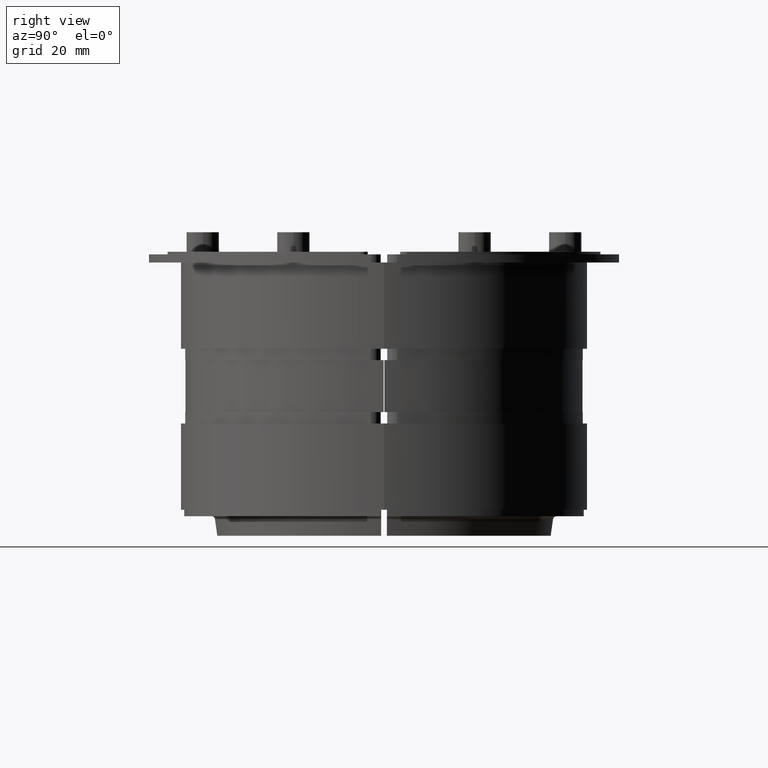
[diagram: clean part render]
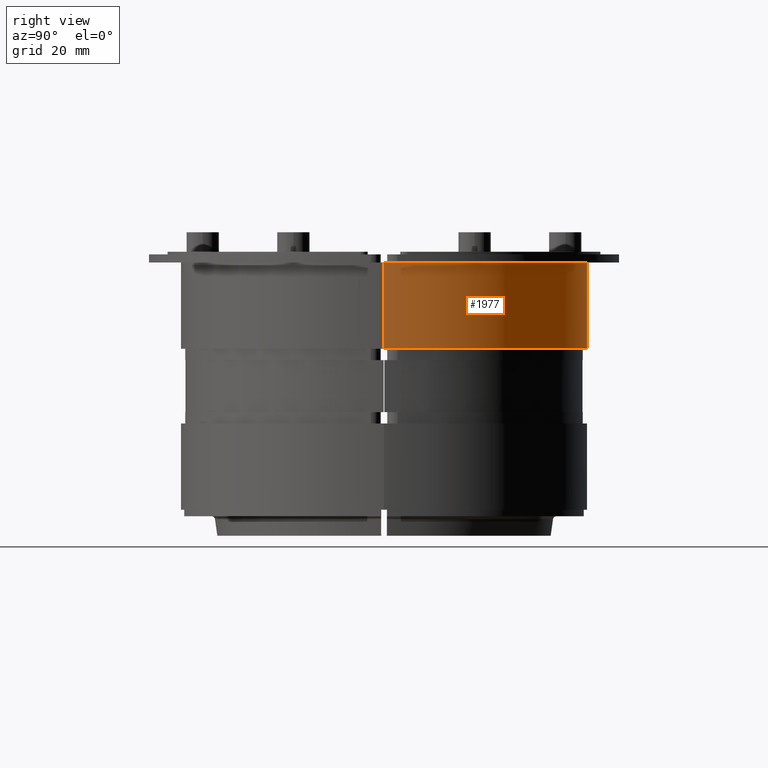
[diagram: same view with one face highlighted and labeled with its STEP entity id]
A machine part, right view. The second image highlights one B-rep face of the part: STEP entity #1977.
In plain terms, the highlighted cylindrical surface (partial cylindrical patch) has radius 62.4 mm, axis along (0, 0, 1).
Its self-contained STEP definition (entity closure, byte-faithful):
#1919=CARTESIAN_POINT('',(-48.401428644322380,-25.449999999999989,11.500000000000000));
#1920=VERTEX_POINT('',#1919);
#1927=CARTESIAN_POINT('',(-48.401428644322380,-25.449999999999989,-15.0));
#1928=VERTEX_POINT('',#1927);
#1929=CARTESIAN_POINT('',(-48.401428644322380,-25.449999999999989,-15.0));
#1930=DIRECTION('',(0.0,0.0,1.0));
#1931=VECTOR('',#1930,26.500000000000000);
#1932=LINE('',#1929,#1931);
#1933=EDGE_CURVE('',#1928,#1920,#1932,.T.);
#1945=CARTESIAN_POINT('',(13.998571355677655,-25.449999999999960,-15.0));
#1946=DIRECTION('',(0.0,0.0,1.0));
#1947=DIRECTION('',(1.0,0.0,0.0));
#1948=AXIS2_PLACEMENT_3D('',#1945,#1946,#1947);
#1949=CYLINDRICAL_SURFACE('',#1948,62.399999999999999);
#1950=CARTESIAN_POINT('',(76.398571355677632,-25.449999999999989,11.500000000000000));
#1951=VERTEX_POINT('',#1950);
#1952=CARTESIAN_POINT('',(13.998571355677655,-25.449999999999960,11.500000000000000));
#1953=DIRECTION('',(0.0,0.0,-1.0));
#1954=DIRECTION('',(1.0,0.0,0.0));
#1955=AXIS2_PLACEMENT_3D('',#1952,#1953,#1954);
#1956=CIRCLE('',#1955,62.399999999999999);
#1957=EDGE_CURVE('',#1920,#1951,#1956,.T.);
#1958=ORIENTED_EDGE('',*,*,#1957,.T.);
#1959=CARTESIAN_POINT('',(76.398571355677632,-25.449999999999989,-15.0));
#1960=VERTEX_POINT('',#1959);
#1961=CARTESIAN_POINT('',(76.398571355677632,-25.449999999999989,-15.0));
#1962=DIRECTION('',(0.0,0.0,1.0));
#1963=VECTOR('',#1962,26.500000000000000);
#1964=LINE('',#1961,#1963);
#1965=EDGE_CURVE('',#1960,#1951,#1964,.T.);
#1966=ORIENTED_EDGE('',*,*,#1965,.F.);
#1967=CARTESIAN_POINT('',(13.998571355677655,-25.449999999999960,-15.0));
#1968=DIRECTION('',(0.0,0.0,1.0));
#1969=DIRECTION('',(1.0,0.0,0.0));
#1970=AXIS2_PLACEMENT_3D('',#1967,#1968,#1969);
#1971=CIRCLE('',#1970,62.399999999999999);
#1972=EDGE_CURVE('',#1960,#1928,#1971,.T.);
#1973=ORIENTED_EDGE('',*,*,#1972,.T.);
#1974=ORIENTED_EDGE('',*,*,#1933,.T.);
#1975=EDGE_LOOP('',(#1958,#1966,#1973,#1974));
#1976=FACE_OUTER_BOUND('',#1975,.T.);
#1977=ADVANCED_FACE('',(#1976),#1949,.T.);